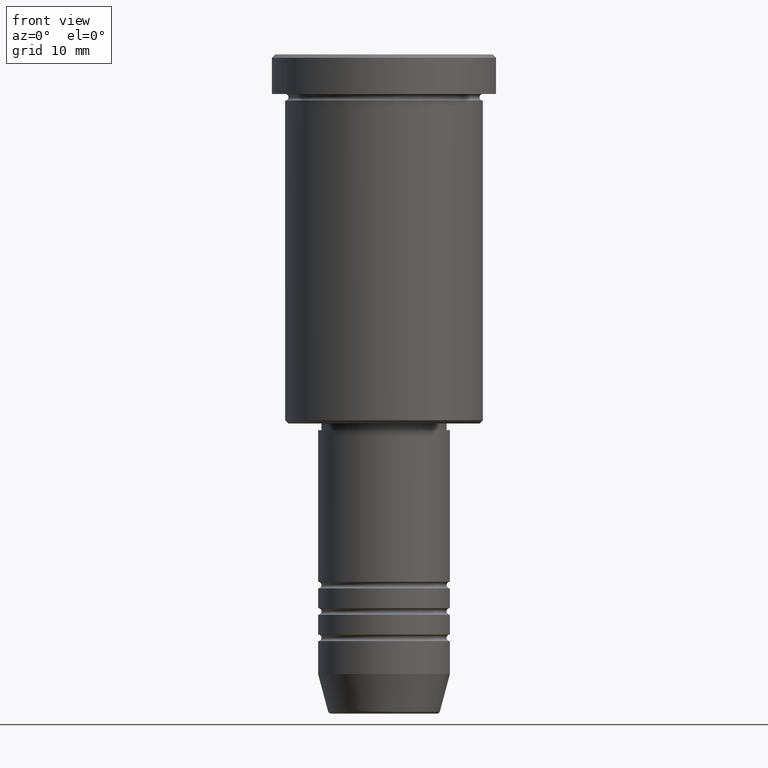
[diagram: clean part render]
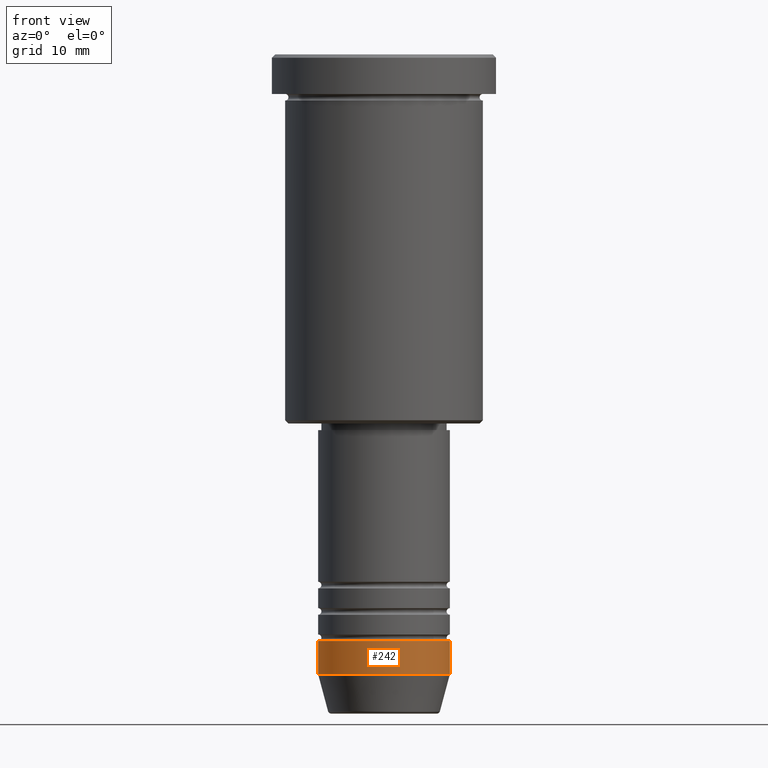
[diagram: same view with one face highlighted and labeled with its STEP entity id]
A machine part, front view. The second image highlights one B-rep face of the part: STEP entity #242.
In plain terms, the highlighted cylindrical surface (partial cylindrical patch) has radius 10 mm, axis along (-0, -0, 1).
Its self-contained STEP definition (entity closure, byte-faithful):
#5 = DIRECTION ( 'NONE',  ( -0.000000000000000000, -0.000000000000000000, 1.000000000000000000 ) ) ;
#16 = ORIENTED_EDGE ( 'NONE', *, *, #604, .T. ) ;
#70 = CARTESIAN_POINT ( 'NONE',  ( 10.00000000000000178, 0.000000000000000000, -94.00000000000000000 ) ) ;
#74 = VERTEX_POINT ( 'NONE', #1004 ) ;
#80 = AXIS2_PLACEMENT_3D ( 'NONE', #887, #259, #171 ) ;
#90 = DIRECTION ( 'NONE',  ( 1.000000000000000000, 0.000000000000000000, 0.000000000000000000 ) ) ;
#134 = DIRECTION ( 'NONE',  ( -0.000000000000000000, -0.000000000000000000, 1.000000000000000000 ) ) ;
#135 = ORIENTED_EDGE ( 'NONE', *, *, #732, .F. ) ;
#165 = CYLINDRICAL_SURFACE ( 'NONE', #80, 10.00000000000000178 ) ;
#171 = DIRECTION ( 'NONE',  ( 1.000000000000000000, 0.000000000000000000, 0.000000000000000000 ) ) ;
#233 = ORIENTED_EDGE ( 'NONE', *, *, #639, .F. ) ;
#242 = ADVANCED_FACE ( 'NONE', ( #1051 ), #165, .T. ) ;
#259 = DIRECTION ( 'NONE',  ( -0.000000000000000000, -0.000000000000000000, 1.000000000000000000 ) ) ;
#262 = CARTESIAN_POINT ( 'NONE',  ( -10.00000000000000000, 1.224646799147353256E-15, -89.00000000000000000 ) ) ;
#273 = CIRCLE ( 'NONE', #802, 10.00000000000000178 ) ;
#280 = VERTEX_POINT ( 'NONE', #694 ) ;
#373 = VECTOR ( 'NONE', #859, 1000.000000000000000 ) ;
#572 = DIRECTION ( 'NONE',  ( -0.000000000000000000, -0.000000000000000000, 1.000000000000000000 ) ) ;
#604 = EDGE_CURVE ( 'NONE', #280, #623, #273, .T. ) ;
#623 = VERTEX_POINT ( 'NONE', #70 ) ;
#639 = EDGE_CURVE ( 'NONE', #280, #712, #967, .T. ) ;
#694 = CARTESIAN_POINT ( 'NONE',  ( -10.00000000000000178, 1.224646799147353454E-15, -94.00000000000000000 ) ) ;
#712 = VERTEX_POINT ( 'NONE', #262 ) ;
#732 = EDGE_CURVE ( 'NONE', #712, #74, #1009, .T. ) ;
#737 = ORIENTED_EDGE ( 'NONE', *, *, #832, .T. ) ;
#773 = DIRECTION ( 'NONE',  ( 1.000000000000000000, 0.000000000000000000, 0.000000000000000000 ) ) ;
#802 = AXIS2_PLACEMENT_3D ( 'NONE', #1160, #134, #773 ) ;
#808 = LINE ( 'NONE', #1177, #929 ) ;
#832 = EDGE_CURVE ( 'NONE', #623, #74, #808, .T. ) ;
#859 = DIRECTION ( 'NONE',  ( -0.000000000000000000, -0.000000000000000000, 1.000000000000000000 ) ) ;
#887 = CARTESIAN_POINT ( 'NONE',  ( 0.000000000000000000, 0.000000000000000000, 0.000000000000000000 ) ) ;
#929 = VECTOR ( 'NONE', #572, 1000.000000000000000 ) ;
#967 = LINE ( 'NONE', #1038, #373 ) ;
#1004 = CARTESIAN_POINT ( 'NONE',  ( 10.00000000000000000, 0.000000000000000000, -89.00000000000000000 ) ) ;
#1009 = CIRCLE ( 'NONE', #1086, 10.00000000000000000 ) ;
#1038 = CARTESIAN_POINT ( 'NONE',  ( -10.00000000000000178, 1.224646799147353454E-15, 0.000000000000000000 ) ) ;
#1051 = FACE_OUTER_BOUND ( 'NONE', #1069, .T. ) ;
#1069 = EDGE_LOOP ( 'NONE', ( #233, #16, #737, #135 ) ) ;
#1077 = CARTESIAN_POINT ( 'NONE',  ( 0.000000000000000000, 0.000000000000000000, -89.00000000000000000 ) ) ;
#1086 = AXIS2_PLACEMENT_3D ( 'NONE', #1077, #5, #90 ) ;
#1160 = CARTESIAN_POINT ( 'NONE',  ( 0.000000000000000000, 0.000000000000000000, -94.00000000000000000 ) ) ;
#1177 = CARTESIAN_POINT ( 'NONE',  ( 10.00000000000000178, 0.000000000000000000, 0.000000000000000000 ) ) ;